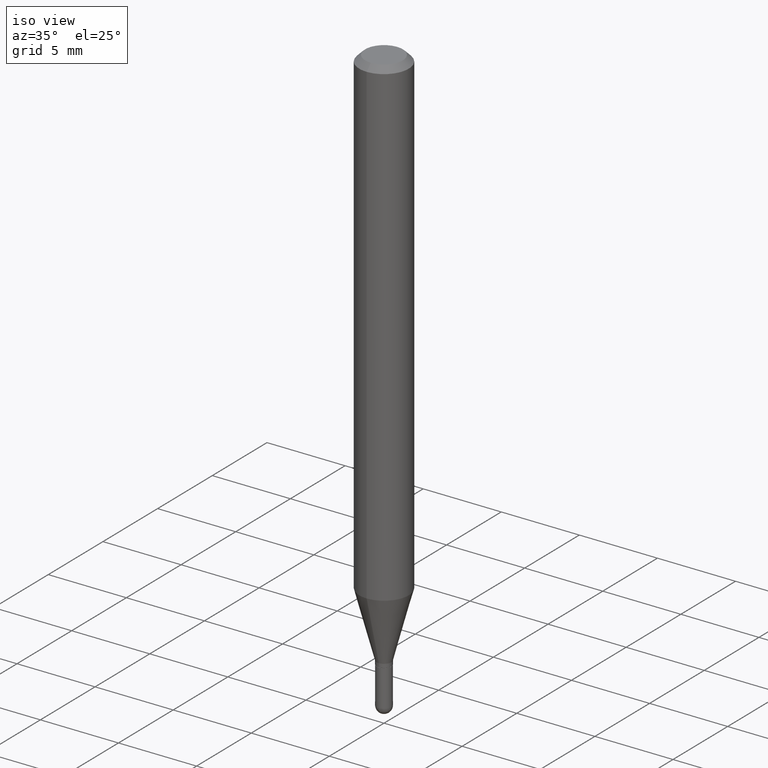
[diagram: clean part render]
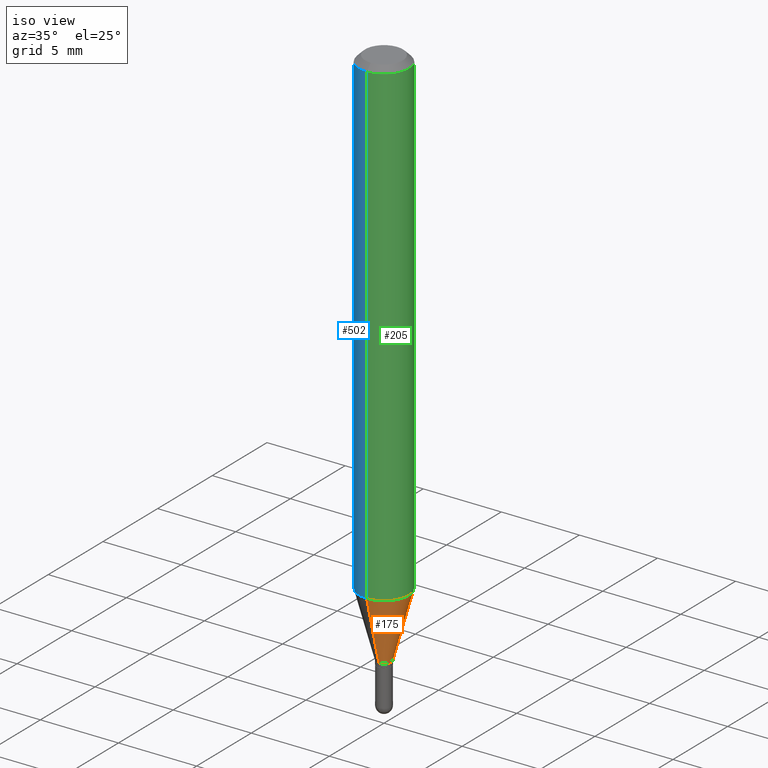
[diagram: same view with three faces highlighted in distinct colors, each labeled with its STEP entity id]
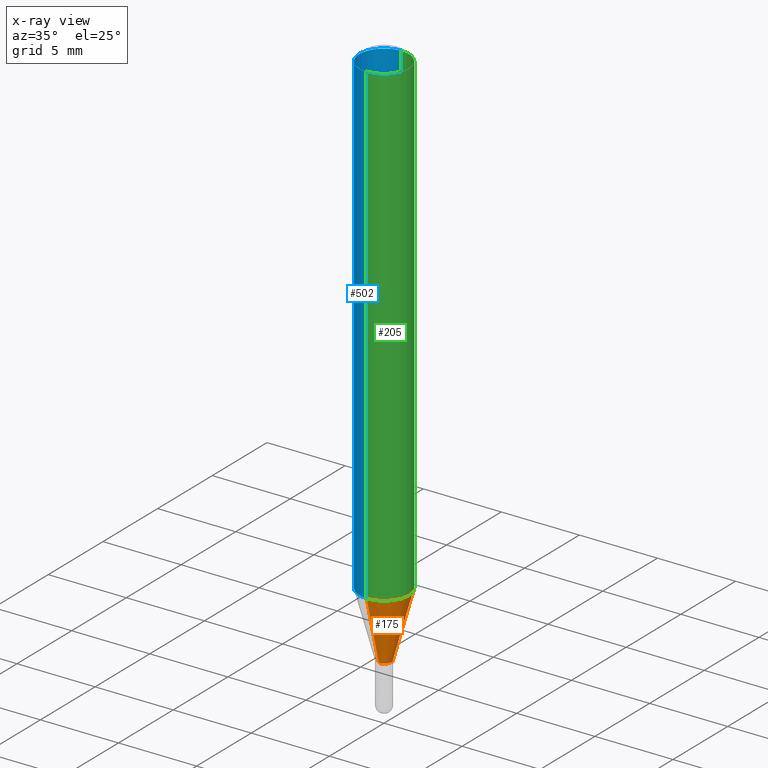
[diagram: x-ray of the same camera — body ghosted, the three highlighted faces saturated]
A machine part, iso view with three faces highlighted in distinct colors.
The next image is the same camera in x-ray (body ghosted, the three faces saturated) — at least one of them is partly hidden behind the body in this view.
Their STEP definitions:

[orange] entity #175 — the highlighted conical surface has half-angle 15 deg.
#3 = CARTESIAN_POINT ( 'NONE',  ( -1.291848095371616572E-16, -0.01850000000000473835, -1.379000000000000226 ) ) ;
#7 = DIRECTION ( 'NONE',  ( -6.982962677686265922E-15, -1.000000000000000000, 0.000000000000000000 ) ) ;
#8 = VERTEX_POINT ( 'NONE', #439 ) ;
#18 = VECTOR ( 'NONE', #106, 39.37007874015748143 ) ;
#53 = DIRECTION ( 'NONE',  ( -2.445457916988369542E-29, 3.491496932792690860E-15, 1.000000000000000000 ) ) ;
#76 = DIRECTION ( 'NONE',  ( -1.807323732225330928E-15, -0.2588190451025182970, 0.9659258262890689783 ) ) ;
#106 = DIRECTION ( 'NONE',  ( 1.839019923739601104E-15, 0.2588190451025250693, 0.9659258262890670910 ) ) ;
#110 = CARTESIAN_POINT ( 'NONE',  ( 3.372286467526962269E-29, -4.814774270321121569E-15, -1.379000000000000226 ) ) ;
#113 = EDGE_CURVE ( 'NONE', #150, #8, #379, .T. ) ;
#150 = VERTEX_POINT ( 'NONE', #3 ) ;
#175 = ADVANCED_FACE ( 'NONE', ( #309 ), #416, .T. ) ;
#193 = CARTESIAN_POINT ( 'NONE',  ( 3.372286467526962269E-29, -4.814774270321121569E-15, -1.379000000000000226 ) ) ;
#247 = AXIS2_PLACEMENT_3D ( 'NONE', #110, #271, #313 ) ;
#250 = LINE ( 'NONE', #374, #341 ) ;
#260 = ORIENTED_EDGE ( 'NONE', *, *, #295, .F. ) ;
#271 = DIRECTION ( 'NONE',  ( -2.445457916988369542E-29, 3.491496932792690860E-15, 1.000000000000000000 ) ) ;
#282 = ORIENTED_EDGE ( 'NONE', *, *, #353, .F. ) ;
#290 = AXIS2_PLACEMENT_3D ( 'NONE', #472, #53, #390 ) ;
#295 = EDGE_CURVE ( 'NONE', #300, #310, #457, .T. ) ;
#300 = VERTEX_POINT ( 'NONE', #311 ) ;
#309 = FACE_OUTER_BOUND ( 'NONE', #445, .T. ) ;
#310 = VERTEX_POINT ( 'NONE', #399 ) ;
#311 = CARTESIAN_POINT ( 'NONE',  ( -4.364351673553620871E-16, -0.06250000000000427436, -1.214789764466969624 ) ) ;
#313 = DIRECTION ( 'NONE',  ( -6.982962677686265922E-15, -1.000000000000000000, 0.000000000000000000 ) ) ;
#341 = VECTOR ( 'NONE', #76, 39.37007874015748143 ) ;
#353 = EDGE_CURVE ( 'NONE', #150, #300, #250, .T. ) ;
#374 = CARTESIAN_POINT ( 'NONE',  ( -1.291848095371616572E-16, -0.01850000000000473835, -1.379000000000000226 ) ) ;
#377 = ORIENTED_EDGE ( 'NONE', *, *, #450, .T. ) ;
#378 = LINE ( 'NONE', #473, #18 ) ;
#379 = CIRCLE ( 'NONE', #451, 0.01849999999999992276 ) ;
#390 = DIRECTION ( 'NONE',  ( -6.982962677686265922E-15, -1.000000000000000000, 4.370956789862821150E-15 ) ) ;
#399 = CARTESIAN_POINT ( 'NONE',  ( 4.440892098500921985E-16, 0.06249999999999573952, -1.214789764466970068 ) ) ;
#416 = CONICAL_SURFACE ( 'NONE', #247, 0.01849999999999992276, 0.2617993877991502960 ) ;
#439 = CARTESIAN_POINT ( 'NONE',  ( 2.877698079828721388E-16, 0.01849999999999510716, -1.379000000000000226 ) ) ;
#442 = DIRECTION ( 'NONE',  ( -2.445457916988369542E-29, 3.491496932792690860E-15, 1.000000000000000000 ) ) ;
#445 = EDGE_LOOP ( 'NONE', ( #465, #377, #260, #282 ) ) ;
#450 = EDGE_CURVE ( 'NONE', #8, #310, #378, .T. ) ;
#451 = AXIS2_PLACEMENT_3D ( 'NONE', #193, #442, #7 ) ;
#457 = CIRCLE ( 'NONE', #290, 0.06250000000000000000 ) ;
#465 = ORIENTED_EDGE ( 'NONE', *, *, #113, .T. ) ;
#472 = CARTESIAN_POINT ( 'NONE',  ( 2.970717246992188659E-29, -4.241434736624381268E-15, -1.214789764466970068 ) ) ;
#473 = CARTESIAN_POINT ( 'NONE',  ( 1.314504061156517093E-16, 0.01849999999999510716, -1.379000000000000226 ) ) ;

[blue] entity #502 — the highlighted cylindrical surface (edge-blend (fillet) strip) has radius 1.5875 mm, axis along (-0, 0, 1).
#20 = FACE_OUTER_BOUND ( 'NONE', #33, .T. ) ;
#33 = EDGE_LOOP ( 'NONE', ( #116, #424, #75, #223 ) ) ;
#39 = CARTESIAN_POINT ( 'NONE',  ( -4.364351673553912750E-16, -0.06250000000000005551, -0.01499999999999979128 ) ) ;
#48 = EDGE_CURVE ( 'NONE', #310, #102, #194, .T. ) ;
#59 = AXIS2_PLACEMENT_3D ( 'NONE', #154, #492, #361 ) ;
#68 = DIRECTION ( 'NONE',  ( -2.445457916988369542E-29, 3.491496932792690860E-15, 1.000000000000000000 ) ) ;
#75 = ORIENTED_EDGE ( 'NONE', *, *, #315, .T. ) ;
#92 = CIRCLE ( 'NONE', #231, 0.06250000000000000000 ) ;
#100 = CARTESIAN_POINT ( 'NONE',  ( 3.668186875482556643E-31, -5.237245399189039446E-17, -0.01500000000000000812 ) ) ;
#102 = VERTEX_POINT ( 'NONE', #222 ) ;
#116 = ORIENTED_EDGE ( 'NONE', *, *, #48, .F. ) ;
#154 = CARTESIAN_POINT ( 'NONE',  ( 0.000000000000000000, 0.000000000000000000, 0.000000000000000000 ) ) ;
#170 = DIRECTION ( 'NONE',  ( -2.445457916988369542E-29, 3.491496932792690860E-15, 1.000000000000000000 ) ) ;
#171 = CIRCLE ( 'NONE', #485, 0.06250000000000000000 ) ;
#179 = VECTOR ( 'NONE', #480, 39.37007874015748143 ) ;
#194 = LINE ( 'NONE', #360, #289 ) ;
#195 = LINE ( 'NONE', #328, #179 ) ;
#222 = CARTESIAN_POINT ( 'NONE',  ( 4.440892098500924943E-16, 0.06249999999999993755, -0.01500000000000022669 ) ) ;
#223 = ORIENTED_EDGE ( 'NONE', *, *, #413, .F. ) ;
#231 = AXIS2_PLACEMENT_3D ( 'NONE', #322, #170, #428 ) ;
#277 = CYLINDRICAL_SURFACE ( 'NONE', #59, 0.06250000000000000000 ) ;
#279 = DIRECTION ( 'NONE',  ( -2.445457916988369542E-29, 3.491496932792690466E-15, 1.000000000000000000 ) ) ;
#289 = VECTOR ( 'NONE', #279, 39.37007874015748143 ) ;
#300 = VERTEX_POINT ( 'NONE', #311 ) ;
#310 = VERTEX_POINT ( 'NONE', #399 ) ;
#311 = CARTESIAN_POINT ( 'NONE',  ( -4.364351673553620871E-16, -0.06250000000000427436, -1.214789764466969624 ) ) ;
#315 = EDGE_CURVE ( 'NONE', #300, #417, #195, .T. ) ;
#322 = CARTESIAN_POINT ( 'NONE',  ( 2.970717246992188659E-29, -4.241434736624381268E-15, -1.214789764466970068 ) ) ;
#328 = CARTESIAN_POINT ( 'NONE',  ( -4.364351673553916201E-16, -0.06250000000000000000, 2.182185582995431788E-16 ) ) ;
#332 = EDGE_CURVE ( 'NONE', #310, #300, #92, .T. ) ;
#360 = CARTESIAN_POINT ( 'NONE',  ( 4.440892098500625669E-16, 0.06250000000000000000, -2.182185582995431788E-16 ) ) ;
#361 = DIRECTION ( 'NONE',  ( -6.982962677686265922E-15, -1.000000000000000000, 3.491496932792690860E-15 ) ) ;
#399 = CARTESIAN_POINT ( 'NONE',  ( 4.440892098500921985E-16, 0.06249999999999573952, -1.214789764466970068 ) ) ;
#413 = EDGE_CURVE ( 'NONE', #102, #417, #171, .T. ) ;
#417 = VERTEX_POINT ( 'NONE', #39 ) ;
#424 = ORIENTED_EDGE ( 'NONE', *, *, #332, .T. ) ;
#428 = DIRECTION ( 'NONE',  ( -6.982962677686265922E-15, -1.000000000000000000, 4.370956789862821150E-15 ) ) ;
#480 = DIRECTION ( 'NONE',  ( -2.445457916988369542E-29, 3.491496932792690466E-15, 1.000000000000000000 ) ) ;
#485 = AXIS2_PLACEMENT_3D ( 'NONE', #100, #68, #507 ) ;
#492 = DIRECTION ( 'NONE',  ( -2.445457916988369542E-29, 3.491496932792690860E-15, 1.000000000000000000 ) ) ;
#502 = ADVANCED_FACE ( 'NONE', ( #20 ), #277, .T. ) ;
#507 = DIRECTION ( 'NONE',  ( -6.982962677686265922E-15, -1.000000000000000000, 3.483106191921935554E-15 ) ) ;

[green] entity #205 — the highlighted cylindrical surface (edge-blend (fillet) strip) has radius 1.5875 mm, axis along (-0, 0, 1).
#11 = DIRECTION ( 'NONE',  ( -6.982962677686265922E-15, -1.000000000000000000, 3.491496932792690860E-15 ) ) ;
#35 = CIRCLE ( 'NONE', #408, 0.06250000000000000000 ) ;
#39 = CARTESIAN_POINT ( 'NONE',  ( -4.364351673553912750E-16, -0.06250000000000005551, -0.01499999999999979128 ) ) ;
#44 = FACE_OUTER_BOUND ( 'NONE', #489, .T. ) ;
#48 = EDGE_CURVE ( 'NONE', #310, #102, #194, .T. ) ;
#53 = DIRECTION ( 'NONE',  ( -2.445457916988369542E-29, 3.491496932792690860E-15, 1.000000000000000000 ) ) ;
#66 = EDGE_CURVE ( 'NONE', #417, #102, #35, .T. ) ;
#82 = DIRECTION ( 'NONE',  ( -2.445457916988369542E-29, 3.491496932792690860E-15, 1.000000000000000000 ) ) ;
#102 = VERTEX_POINT ( 'NONE', #222 ) ;
#107 = CYLINDRICAL_SURFACE ( 'NONE', #119, 0.06250000000000000000 ) ;
#111 = ORIENTED_EDGE ( 'NONE', *, *, #66, .F. ) ;
#119 = AXIS2_PLACEMENT_3D ( 'NONE', #404, #82, #11 ) ;
#179 = VECTOR ( 'NONE', #480, 39.37007874015748143 ) ;
#185 = ORIENTED_EDGE ( 'NONE', *, *, #315, .F. ) ;
#194 = LINE ( 'NONE', #360, #289 ) ;
#195 = LINE ( 'NONE', #328, #179 ) ;
#205 = ADVANCED_FACE ( 'NONE', ( #44 ), #107, .T. ) ;
#222 = CARTESIAN_POINT ( 'NONE',  ( 4.440892098500924943E-16, 0.06249999999999993755, -0.01500000000000022669 ) ) ;
#279 = DIRECTION ( 'NONE',  ( -2.445457916988369542E-29, 3.491496932792690466E-15, 1.000000000000000000 ) ) ;
#289 = VECTOR ( 'NONE', #279, 39.37007874015748143 ) ;
#290 = AXIS2_PLACEMENT_3D ( 'NONE', #472, #53, #390 ) ;
#295 = EDGE_CURVE ( 'NONE', #300, #310, #457, .T. ) ;
#300 = VERTEX_POINT ( 'NONE', #311 ) ;
#310 = VERTEX_POINT ( 'NONE', #399 ) ;
#311 = CARTESIAN_POINT ( 'NONE',  ( -4.364351673553620871E-16, -0.06250000000000427436, -1.214789764466969624 ) ) ;
#315 = EDGE_CURVE ( 'NONE', #300, #417, #195, .T. ) ;
#320 = DIRECTION ( 'NONE',  ( -2.445457916988369542E-29, 3.491496932792690860E-15, 1.000000000000000000 ) ) ;
#328 = CARTESIAN_POINT ( 'NONE',  ( -4.364351673553916201E-16, -0.06250000000000000000, 2.182185582995431788E-16 ) ) ;
#330 = CARTESIAN_POINT ( 'NONE',  ( 3.668186875482556643E-31, -5.237245399189039446E-17, -0.01500000000000000812 ) ) ;
#360 = CARTESIAN_POINT ( 'NONE',  ( 4.440892098500625669E-16, 0.06250000000000000000, -2.182185582995431788E-16 ) ) ;
#385 = ORIENTED_EDGE ( 'NONE', *, *, #48, .T. ) ;
#390 = DIRECTION ( 'NONE',  ( -6.982962677686265922E-15, -1.000000000000000000, 4.370956789862821150E-15 ) ) ;
#399 = CARTESIAN_POINT ( 'NONE',  ( 4.440892098500921985E-16, 0.06249999999999573952, -1.214789764466970068 ) ) ;
#404 = CARTESIAN_POINT ( 'NONE',  ( 0.000000000000000000, 0.000000000000000000, 0.000000000000000000 ) ) ;
#408 = AXIS2_PLACEMENT_3D ( 'NONE', #330, #320, #491 ) ;
#417 = VERTEX_POINT ( 'NONE', #39 ) ;
#452 = ORIENTED_EDGE ( 'NONE', *, *, #295, .T. ) ;
#457 = CIRCLE ( 'NONE', #290, 0.06250000000000000000 ) ;
#472 = CARTESIAN_POINT ( 'NONE',  ( 2.970717246992188659E-29, -4.241434736624381268E-15, -1.214789764466970068 ) ) ;
#480 = DIRECTION ( 'NONE',  ( -2.445457916988369542E-29, 3.491496932792690466E-15, 1.000000000000000000 ) ) ;
#489 = EDGE_LOOP ( 'NONE', ( #452, #385, #111, #185 ) ) ;
#491 = DIRECTION ( 'NONE',  ( -6.982962677686265922E-15, -1.000000000000000000, 3.483106191921935554E-15 ) ) ;